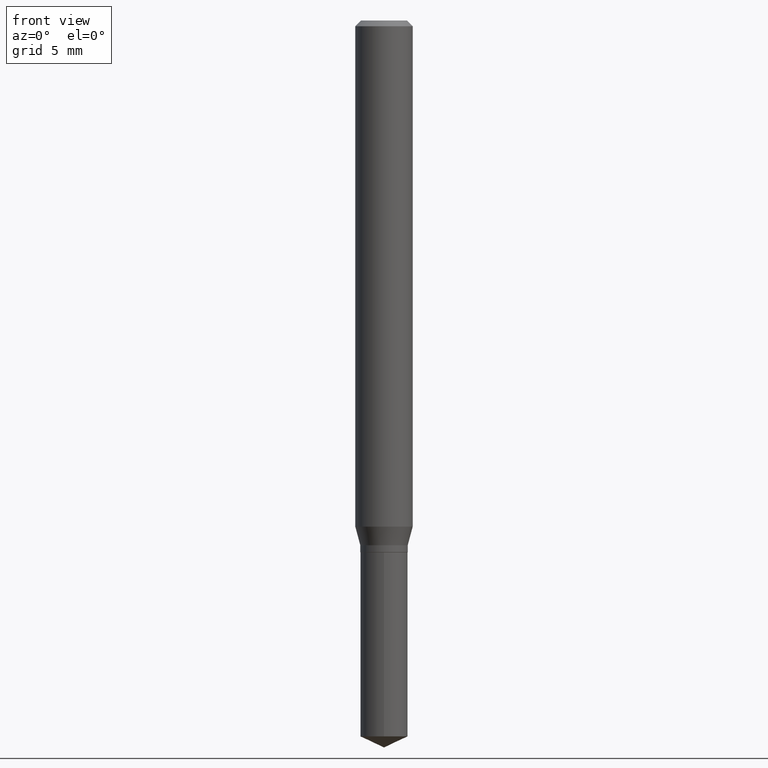
[diagram: clean part render]
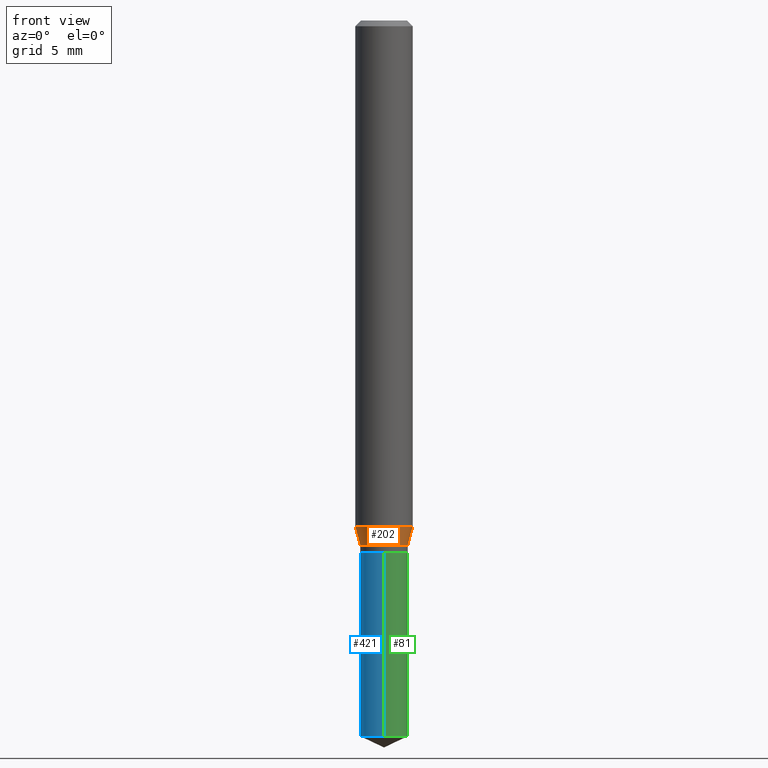
[diagram: same view with three faces highlighted in distinct colors, each labeled with its STEP entity id]
A machine part, front view with three faces highlighted in distinct colors.
Their STEP definitions:

[orange] entity #202 — the highlighted conical surface has half-angle 15 deg.
#5 = CARTESIAN_POINT ( 'NONE',  ( 0.05905000000000013016, -4.049233189994112678E-15, -1.041646479222418487 ) ) ;
#13 = CARTESIAN_POINT ( 'NONE',  ( 2.547313972010998166E-29, -3.636889243876738547E-15, -1.041646479222418487 ) ) ;
#16 = DIRECTION ( 'NONE',  ( -2.445468806185136597E-29, 3.491481338843145583E-15, 1.000000000000000000 ) ) ;
#48 = LINE ( 'NONE', #84, #313 ) ;
#59 = CONICAL_SURFACE ( 'NONE', #397, 0.04880000000000000310, 0.2617993877991498519 ) ;
#76 = AXIS2_PLACEMENT_3D ( 'NONE', #469, #132, #405 ) ;
#77 = VERTEX_POINT ( 'NONE', #165 ) ;
#84 = CARTESIAN_POINT ( 'NONE',  ( 0.04880000000000000310, -4.111219276487801832E-15, -1.079899999999999860 ) ) ;
#113 = EDGE_LOOP ( 'NONE', ( #140, #350, #341, #440 ) ) ;
#115 = CARTESIAN_POINT ( 'NONE',  ( 0.04880000000000000310, -4.111219276487801832E-15, -1.079899999999999860 ) ) ;
#119 = DIRECTION ( 'NONE',  ( -0.2588190451025211281, 5.211531920934547886E-15, 0.9659258262890679791 ) ) ;
#132 = DIRECTION ( 'NONE',  ( -2.445468806185136597E-29, 3.491481338843145583E-15, 1.000000000000000000 ) ) ;
#140 = ORIENTED_EDGE ( 'NONE', *, *, #429, .F. ) ;
#146 = CARTESIAN_POINT ( 'NONE',  ( 2.640861763799328493E-29, -3.770450697816712503E-15, -1.079899999999999860 ) ) ;
#150 = VECTOR ( 'NONE', #119, 39.37007874015748854 ) ;
#158 = EDGE_CURVE ( 'NONE', #232, #402, #451, .T. ) ;
#162 = DIRECTION ( 'NONE',  ( 1.000000000000000000, -6.982962677686265133E-15, 0.000000000000000000 ) ) ;
#165 = CARTESIAN_POINT ( 'NONE',  ( -0.04880000000000000310, -3.448320786204627530E-15, -1.079899999999999860 ) ) ;
#187 = EDGE_CURVE ( 'NONE', #77, #263, #289, .T. ) ;
#195 = CARTESIAN_POINT ( 'NONE',  ( -0.04880000000000000310, -3.423705842765783541E-15, -1.079899999999999860 ) ) ;
#202 = ADVANCED_FACE ( 'NONE', ( #444 ), #59, .T. ) ;
#227 = LINE ( 'NONE', #195, #150 ) ;
#232 = VERTEX_POINT ( 'NONE', #364 ) ;
#263 = VERTEX_POINT ( 'NONE', #115 ) ;
#289 = CIRCLE ( 'NONE', #76, 0.04880000000000000310 ) ;
#298 = AXIS2_PLACEMENT_3D ( 'NONE', #13, #16, #162 ) ;
#301 = DIRECTION ( 'NONE',  ( -2.445468806185136597E-29, 3.491481338843145583E-15, 1.000000000000000000 ) ) ;
#313 = VECTOR ( 'NONE', #354, 39.37007874015748854 ) ;
#341 = ORIENTED_EDGE ( 'NONE', *, *, #467, .T. ) ;
#350 = ORIENTED_EDGE ( 'NONE', *, *, #187, .T. ) ;
#354 = DIRECTION ( 'NONE',  ( 0.2588190451025211281, 1.565188264969622954E-15, 0.9659258262890679791 ) ) ;
#364 = CARTESIAN_POINT ( 'NONE',  ( -0.05905000000000013016, -3.217313758410398265E-15, -1.041646479222418487 ) ) ;
#397 = AXIS2_PLACEMENT_3D ( 'NONE', #146, #301, #410 ) ;
#402 = VERTEX_POINT ( 'NONE', #5 ) ;
#405 = DIRECTION ( 'NONE',  ( 1.000000000000000000, -6.982962677686264344E-15, 0.000000000000000000 ) ) ;
#410 = DIRECTION ( 'NONE',  ( 1.000000000000000000, -6.982962677686264344E-15, 0.000000000000000000 ) ) ;
#429 = EDGE_CURVE ( 'NONE', #77, #232, #227, .T. ) ;
#440 = ORIENTED_EDGE ( 'NONE', *, *, #158, .F. ) ;
#444 = FACE_OUTER_BOUND ( 'NONE', #113, .T. ) ;
#451 = CIRCLE ( 'NONE', #298, 0.05905000000000013016 ) ;
#467 = EDGE_CURVE ( 'NONE', #263, #402, #48, .T. ) ;
#469 = CARTESIAN_POINT ( 'NONE',  ( 2.640861763799328493E-29, -3.770450697816712503E-15, -1.079899999999999860 ) ) ;

[blue] entity #421 — the highlighted cylindrical surface (edge-blend (fillet) strip) has radius 1.2395 mm, axis along (-0, 0, 1).
#1 = VECTOR ( 'NONE', #10, 39.37007874015748143 ) ;
#10 = DIRECTION ( 'NONE',  ( -2.445458899330790108E-29, 3.491495526022433599E-15, 1.000000000000000000 ) ) ;
#36 = VERTEX_POINT ( 'NONE', #90 ) ;
#46 = VERTEX_POINT ( 'NONE', #201 ) ;
#62 = CARTESIAN_POINT ( 'NONE',  ( 3.603013495172768247E-29, -5.144159106827160927E-15, -1.473344186282036006 ) ) ;
#66 = EDGE_CURVE ( 'NONE', #411, #267, #235, .T. ) ;
#90 = CARTESIAN_POINT ( 'NONE',  ( -3.407685786710537815E-16, -0.04880000000000515176, -1.473344186282035784 ) ) ;
#94 = CARTESIAN_POINT ( 'NONE',  ( 3.467448550509555861E-16, 0.04879999999999617977, -1.094500000000000028 ) ) ;
#137 = CIRCLE ( 'NONE', #328, 0.04880000000000000310 ) ;
#151 = DIRECTION ( 'NONE',  ( -2.445458899330790108E-29, 3.491495526022433205E-15, 1.000000000000000000 ) ) ;
#154 = CYLINDRICAL_SURFACE ( 'NONE', #212, 0.04880000000000000310 ) ;
#168 = DIRECTION ( 'NONE',  ( -2.445458899330790108E-29, 3.491495526022433599E-15, 1.000000000000000000 ) ) ;
#177 = EDGE_CURVE ( 'NONE', #36, #46, #203, .T. ) ;
#181 = ORIENTED_EDGE ( 'NONE', *, *, #369, .T. ) ;
#189 = ORIENTED_EDGE ( 'NONE', *, *, #66, .F. ) ;
#192 = CARTESIAN_POINT ( 'NONE',  ( 2.676565608369631794E-29, -3.821426325363822773E-15, -1.094499999999999806 ) ) ;
#201 = CARTESIAN_POINT ( 'NONE',  ( -3.407685786710630506E-16, -0.04880000000000382643, -1.094499999999999806 ) ) ;
#203 = LINE ( 'NONE', #357, #362 ) ;
#208 = DIRECTION ( 'NONE',  ( -2.445458899330790108E-29, 3.491495526022433205E-15, 1.000000000000000000 ) ) ;
#212 = AXIS2_PLACEMENT_3D ( 'NONE', #192, #151, #463 ) ;
#235 = LINE ( 'NONE', #94, #1 ) ;
#258 = EDGE_LOOP ( 'NONE', ( #189, #181, #485, #416 ) ) ;
#266 = DIRECTION ( 'NONE',  ( -2.445458899330790108E-29, 3.491495526022433205E-15, 1.000000000000000000 ) ) ;
#267 = VERTEX_POINT ( 'NONE', #326 ) ;
#274 = FACE_OUTER_BOUND ( 'NONE', #258, .T. ) ;
#304 = AXIS2_PLACEMENT_3D ( 'NONE', #306, #266, #466 ) ;
#306 = CARTESIAN_POINT ( 'NONE',  ( 2.676565608369631794E-29, -3.821426325363822773E-15, -1.094499999999999806 ) ) ;
#318 = CARTESIAN_POINT ( 'NONE',  ( 3.467448550509649045E-16, 0.04879999999999485444, -1.473344186282036228 ) ) ;
#326 = CARTESIAN_POINT ( 'NONE',  ( 3.467448550509649045E-16, 0.04879999999999617283, -1.094500000000000028 ) ) ;
#328 = AXIS2_PLACEMENT_3D ( 'NONE', #62, #208, #455 ) ;
#357 = CARTESIAN_POINT ( 'NONE',  ( -3.407685786710630506E-16, -0.04880000000000382643, -1.094499999999999806 ) ) ;
#362 = VECTOR ( 'NONE', #168, 39.37007874015748143 ) ;
#369 = EDGE_CURVE ( 'NONE', #411, #36, #137, .T. ) ;
#389 = CIRCLE ( 'NONE', #304, 0.04880000000000000310 ) ;
#393 = EDGE_CURVE ( 'NONE', #267, #46, #389, .T. ) ;
#411 = VERTEX_POINT ( 'NONE', #318 ) ;
#416 = ORIENTED_EDGE ( 'NONE', *, *, #393, .F. ) ;
#421 = ADVANCED_FACE ( 'NONE', ( #274 ), #154, .T. ) ;
#455 = DIRECTION ( 'NONE',  ( -6.982962677686266711E-15, -1.000000000000000000, 5.598049167344801153E-15 ) ) ;
#463 = DIRECTION ( 'NONE',  ( -6.982962677686266711E-15, -1.000000000000000000, 2.799024583672400577E-15 ) ) ;
#466 = DIRECTION ( 'NONE',  ( -6.982962677686266711E-15, -1.000000000000000000, 2.799024583672400577E-15 ) ) ;
#485 = ORIENTED_EDGE ( 'NONE', *, *, #177, .T. ) ;

[green] entity #81 — the highlighted cylindrical surface (edge-blend (fillet) strip) has radius 1.2395 mm, axis along (-0, 0, 1).
#1 = VECTOR ( 'NONE', #10, 39.37007874015748143 ) ;
#4 = ORIENTED_EDGE ( 'NONE', *, *, #66, .T. ) ;
#10 = DIRECTION ( 'NONE',  ( -2.445458899330790108E-29, 3.491495526022433599E-15, 1.000000000000000000 ) ) ;
#18 = DIRECTION ( 'NONE',  ( -2.445458899330790108E-29, 3.491495526022433205E-15, 1.000000000000000000 ) ) ;
#36 = VERTEX_POINT ( 'NONE', #90 ) ;
#44 = EDGE_CURVE ( 'NONE', #46, #267, #213, .T. ) ;
#45 = EDGE_LOOP ( 'NONE', ( #489, #4, #332, #400 ) ) ;
#46 = VERTEX_POINT ( 'NONE', #201 ) ;
#52 = DIRECTION ( 'NONE',  ( -6.982962677686266711E-15, -1.000000000000000000, 5.598049167344801153E-15 ) ) ;
#66 = EDGE_CURVE ( 'NONE', #411, #267, #235, .T. ) ;
#81 = ADVANCED_FACE ( 'NONE', ( #237 ), #434, .T. ) ;
#90 = CARTESIAN_POINT ( 'NONE',  ( -3.407685786710537815E-16, -0.04880000000000515176, -1.473344186282035784 ) ) ;
#94 = CARTESIAN_POINT ( 'NONE',  ( 3.467448550509555861E-16, 0.04879999999999617977, -1.094500000000000028 ) ) ;
#97 = CARTESIAN_POINT ( 'NONE',  ( 3.603013495172768247E-29, -5.144159106827160927E-15, -1.473344186282036006 ) ) ;
#123 = AXIS2_PLACEMENT_3D ( 'NONE', #363, #18, #128 ) ;
#128 = DIRECTION ( 'NONE',  ( -6.982962677686266711E-15, -1.000000000000000000, 2.799024583672400577E-15 ) ) ;
#161 = AXIS2_PLACEMENT_3D ( 'NONE', #97, #317, #52 ) ;
#167 = EDGE_CURVE ( 'NONE', #36, #411, #250, .T. ) ;
#168 = DIRECTION ( 'NONE',  ( -2.445458899330790108E-29, 3.491495526022433599E-15, 1.000000000000000000 ) ) ;
#177 = EDGE_CURVE ( 'NONE', #36, #46, #203, .T. ) ;
#201 = CARTESIAN_POINT ( 'NONE',  ( -3.407685786710630506E-16, -0.04880000000000382643, -1.094499999999999806 ) ) ;
#203 = LINE ( 'NONE', #357, #362 ) ;
#213 = CIRCLE ( 'NONE', #337, 0.04880000000000000310 ) ;
#235 = LINE ( 'NONE', #94, #1 ) ;
#237 = FACE_OUTER_BOUND ( 'NONE', #45, .T. ) ;
#250 = CIRCLE ( 'NONE', #161, 0.04880000000000000310 ) ;
#267 = VERTEX_POINT ( 'NONE', #326 ) ;
#317 = DIRECTION ( 'NONE',  ( -2.445458899330790108E-29, 3.491495526022433205E-15, 1.000000000000000000 ) ) ;
#318 = CARTESIAN_POINT ( 'NONE',  ( 3.467448550509649045E-16, 0.04879999999999485444, -1.473344186282036228 ) ) ;
#326 = CARTESIAN_POINT ( 'NONE',  ( 3.467448550509649045E-16, 0.04879999999999617283, -1.094500000000000028 ) ) ;
#332 = ORIENTED_EDGE ( 'NONE', *, *, #44, .F. ) ;
#337 = AXIS2_PLACEMENT_3D ( 'NONE', #396, #422, #432 ) ;
#357 = CARTESIAN_POINT ( 'NONE',  ( -3.407685786710630506E-16, -0.04880000000000382643, -1.094499999999999806 ) ) ;
#362 = VECTOR ( 'NONE', #168, 39.37007874015748143 ) ;
#363 = CARTESIAN_POINT ( 'NONE',  ( 2.676565608369631794E-29, -3.821426325363822773E-15, -1.094499999999999806 ) ) ;
#396 = CARTESIAN_POINT ( 'NONE',  ( 2.676565608369631794E-29, -3.821426325363822773E-15, -1.094499999999999806 ) ) ;
#400 = ORIENTED_EDGE ( 'NONE', *, *, #177, .F. ) ;
#411 = VERTEX_POINT ( 'NONE', #318 ) ;
#422 = DIRECTION ( 'NONE',  ( -2.445458899330790108E-29, 3.491495526022433205E-15, 1.000000000000000000 ) ) ;
#432 = DIRECTION ( 'NONE',  ( -6.982962677686266711E-15, -1.000000000000000000, 2.799024583672400577E-15 ) ) ;
#434 = CYLINDRICAL_SURFACE ( 'NONE', #123, 0.04880000000000000310 ) ;
#489 = ORIENTED_EDGE ( 'NONE', *, *, #167, .T. ) ;